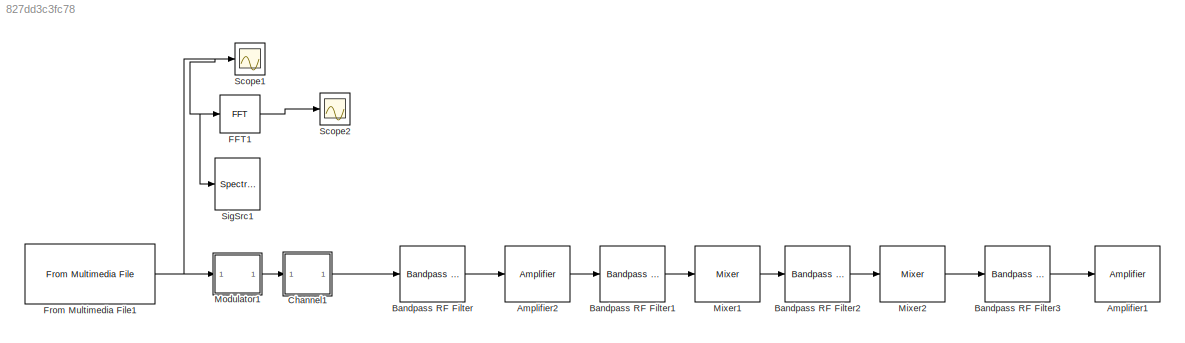
MODEL slx_827dd3c3fc78
KIND model
CONFIG AbsTol = auto
CONFIG FixedStep = auto
CONFIG MaxStep = auto
CONFIG MinStep = auto
CONFIG RelTol = auto
CONFIG SampleTimeConstraint = Specified
CONFIG Solver = FixedStepAuto
CONFIG SolverMode = Auto
CONFIG SolverName = FixedStepAuto
CONFIG StartTime = 0.0
CONFIG StopTime = 0.01
BLOCK [Reference] Amplifier1  REF=rfmathmodels1/Amplifier
  Ports = [1, 1]
  SourceBlock = rfmathmodels1/Amplifier
  SourceType = Amplifier
BLOCK [Reference] Amplifier2  REF=rfmathmodels1/Amplifier
  Ports = [1, 1]
  SourceBlock = rfmathmodels1/Amplifier
  SourceType = Amplifier
BLOCK [Reference] Bandpass RF Filter  REF=rfmathmodels1/Bandpass RF Filter
  Ports = [1, 1]
  SourceBlock = rfmathmodels1/Bandpass RF Filter
  SourceType = Bandpass RF Filter
BLOCK [Reference] Bandpass RF Filter1  REF=rfmathmodels1/Bandpass RF Filter
  Ports = [1, 1]
  SourceBlock = rfmathmodels1/Bandpass RF Filter
  SourceType = Bandpass RF Filter
BLOCK [Reference] Bandpass RF Filter2  REF=rfmathmodels1/Bandpass RF Filter
  Ports = [1, 1]
  SourceBlock = rfmathmodels1/Bandpass RF Filter
  SourceType = Bandpass RF Filter
BLOCK [Reference] Bandpass RF Filter3  REF=rfmathmodels1/Bandpass RF Filter
  Ports = [1, 1]
  SourceBlock = rfmathmodels1/Bandpass RF Filter
  SourceType = Bandpass RF Filter
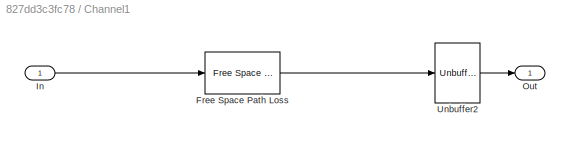
BLOCK [SubSystem] Channel1
  Ports = [1, 1]
  RequestExecContextInheritance = off
  Variant = off
BLOCK [Reference] Channel1/Free Space Path Loss  REF=commrflib2/Free Space
Path Loss
  Ports = [1, 1]
  SourceBlock = commrflib2/Free Space\nPath Loss
  SourceType = Free Space Path Loss
BLOCK [Inport] Channel1/In
  IconDisplay = Port number
BLOCK [Outport] Channel1/Out
  IconDisplay = Port number
BLOCK [Unbuffer] Channel1/Unbuffer2
  Ports = [1, 1]
  SampleBasedProcessing = Same as frame based
BLOCK [Reference] FFT1  REF=dspxfrm3/FFT
  Ports = [1, 1]
  SourceBlock = dspxfrm3/FFT
  SourceType = FFT
BLOCK [Reference] From Multimedia File1  REF=dspvision/From Multimedia File
  Ports = [0, 1]
  SourceBlock = dspvision/From Multimedia File
  SourceType = From Multimedia File
BLOCK [Reference] Mixer1  REF=rfmathmodels1/Mixer
  Ports = [1, 1]
  SourceBlock = rfmathmodels1/Mixer
  SourceType = Mixer
BLOCK [Reference] Mixer2  REF=rfmathmodels1/Mixer
  Ports = [1, 1]
  SourceBlock = rfmathmodels1/Mixer
  SourceType = Mixer
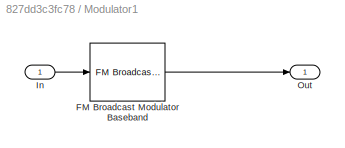
BLOCK [SubSystem] Modulator1
  Ports = [1, 1]
  RequestExecContextInheritance = off
  Variant = off
BLOCK [Reference] Modulator1/FM Broadcast Modulator Baseband  REF=commanabbnd3/FM Broadcast
Modulator
Baseband
  Ports = [1, 1]
  SourceBlock = commanabbnd3/FM Broadcast\nModulator\nBaseband
  SourceType = FM Broadcast Modulator Baseband
BLOCK [Inport] Modulator1/In
  IconDisplay = Port number
BLOCK [Outport] Modulator1/Out
  IconDisplay = Port number
BLOCK [Scope] Scope1
  Ports = [1]
  ScopeSpecificationString = Simulink.scopes.TimeScopeBlockCfg('CurrentConfiguration', extmgr.ConfigurationSet(extmgr.Configuration('Core','General UI',true),extmgr.Configuration('Core','Source UI',true),extmgr.Configuration('Sources','WiredSimulink',true),extmgr.Configuration('Visuals','Time Domain',true,'SerializedDisplays',{struct('MinYLimReal','-0.375','MaxYLimReal','3.375','YLabelReal','','MinYLimMag','0.00000','MaxYLimM...<+1359ch>
BLOCK [Scope] Scope2
  Ports = [1]
  ScopeSpecificationString = Simulink.scopes.TimeScopeBlockCfg('CurrentConfiguration', extmgr.ConfigurationSet(extmgr.Configuration('Core','General UI',true),extmgr.Configuration('Core','Source UI',true),extmgr.Configuration('Sources','WiredSimulink',true,'DataLoggingVariableName','ScopeData1'),extmgr.Configuration('Visuals','Time Domain',true,'SerializedDisplays',{struct('MinYLimReal','-62.28136','MaxYLimReal','234.69793','Y...<+1422ch>
BLOCK [SpectrumAnalyzer] SigSrc1
  Ports = [1]
  ScopeSpecificationString = spbscopes.SpectrumAnalyzerBlockCfg('CurrentConfiguration', extmgr.ConfigurationSet(extmgr.Configuration('Core','General UI',true),extmgr.Configuration('Core','Source UI',true),extmgr.Configuration('Sources','WiredSimulink',true),extmgr.Configuration('Visuals','Spectrum',true,'AxesProperties',struct('Color',[0 0 0],'XColor',[0.686274509803922 0.686274509803922 0.686274509803922],'YColor',[0.6862745...<+1221ch>
LINE Amplifier2:1 -> Bandpass RF Filter1:1
LINE Bandpass RF Filter1:1 -> Mixer1:1
LINE Bandpass RF Filter2:1 -> Mixer2:1
LINE Bandpass RF Filter3:1 -> Amplifier1:1
LINE Bandpass RF Filter:1 -> Amplifier2:1
LINE Channel1/Free Space Path Loss:1 -> Channel1/Unbuffer2:1
LINE Channel1/In:1 -> Channel1/Free Space Path Loss:1
LINE Channel1/Unbuffer2:1 -> Channel1/Out:1
LINE Channel1:1 -> Bandpass RF Filter:1
LINE FFT1:1 -> Scope2:1
NET From Multimedia File1:1 -> FFT1:1, Modulator1:1, Scope1:1, SigSrc1:1
LINE Mixer1:1 -> Bandpass RF Filter2:1
LINE Mixer2:1 -> Bandpass RF Filter3:1
LINE Modulator1/FM Broadcast Modulator Baseband:1 -> Modulator1/Out:1
LINE Modulator1/In:1 -> Modulator1/FM Broadcast Modulator Baseband:1
LINE Modulator1:1 -> Channel1:1
note: NET lines group one-source signal fan-out (src -> all destinations, sorted); 1:1 wires keep LINE
